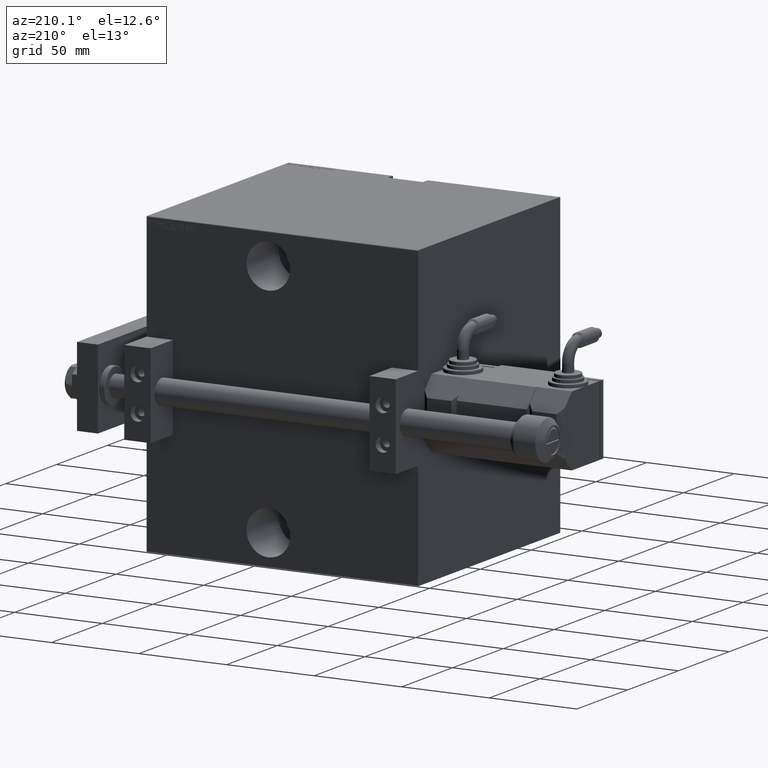
[diagram: clean part render]
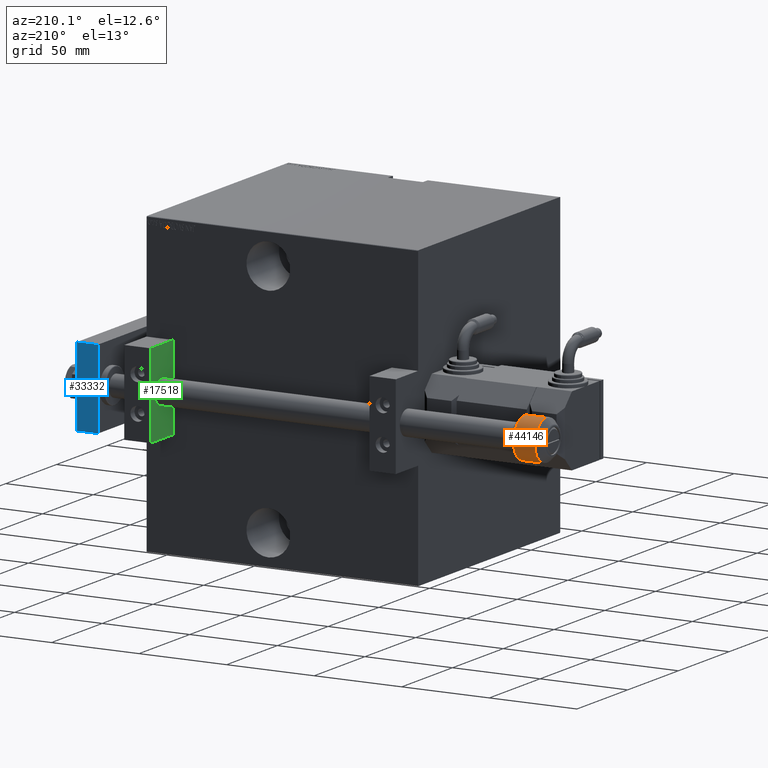
[diagram: same view with three faces highlighted in distinct colors, each labeled with its STEP entity id]
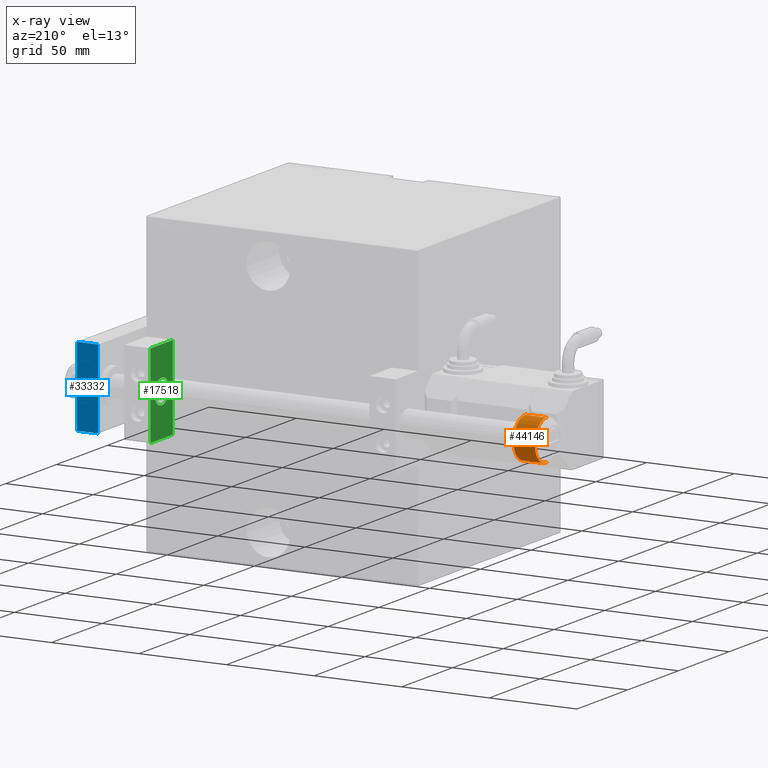
[diagram: x-ray of the same camera — body ghosted, the three highlighted faces saturated]
A machine part, auxiliary view with three faces highlighted in distinct colors.
The next image is the same camera in x-ray (body ghosted, the three faces saturated) — at least one of them is partly hidden behind the body in this view.
Their STEP definitions:

[orange] entity #44146 — the highlighted cylindrical surface (edge-blend (fillet) strip) has radius 11.5 mm, axis along (-1, 0, -0).
#1316 = CARTESIAN_POINT ( 'NONE',  ( 11.49999999999999822, 1.408343819019455979E-15, 3.914213562373095812 ) ) ;
#2425 = VERTEX_POINT ( 'NONE', #1316 ) ;
#2428 = CARTESIAN_POINT ( 'NONE',  ( 0.000000000000000000, 0.000000000000000000, 3.914213562373095812 ) ) ;
#3248 = ORIENTED_EDGE ( 'NONE', *, *, #10058, .T. ) ;
#3466 = EDGE_CURVE ( 'NONE', #38599, #48744, #20998, .T. ) ;
#3602 = EDGE_LOOP ( 'NONE', ( #48250, #3248, #44060, #37664 ) ) ;
#7611 = EDGE_CURVE ( 'NONE', #48744, #2425, #16870, .T. ) ;
#7613 = CARTESIAN_POINT ( 'NONE',  ( 0.000000000000000000, 0.000000000000000000, 20.00000000000000000 ) ) ;
#10058 = EDGE_CURVE ( 'NONE', #20093, #38599, #16904, .T. ) ;
#10070 = EDGE_CURVE ( 'NONE', #20093, #2425, #45765, .T. ) ;
#10168 = CARTESIAN_POINT ( 'NONE',  ( 11.49999999999999822, 1.408343819019455979E-15, 16.08578643762689708 ) ) ;
#14683 = DIRECTION ( 'NONE',  ( -0.000000000000000000, -0.000000000000000000, -1.000000000000000000 ) ) ;
#14782 = CARTESIAN_POINT ( 'NONE',  ( -11.49999999999999822, 0.000000000000000000, 3.914213562373095812 ) ) ;
#16870 = CIRCLE ( 'NONE', #45107, 11.49999999999999822 ) ;
#16904 = CIRCLE ( 'NONE', #48351, 11.49999999999999822 ) ;
#17211 = CARTESIAN_POINT ( 'NONE',  ( -11.49999999999999822, 0.000000000000000000, 20.00000000000000000 ) ) ;
#17245 = DIRECTION ( 'NONE',  ( 0.000000000000000000, 0.000000000000000000, -1.000000000000000000 ) ) ;
#17983 = DIRECTION ( 'NONE',  ( -0.000000000000000000, -0.000000000000000000, -1.000000000000000000 ) ) ;
#20093 = VERTEX_POINT ( 'NONE', #10168 ) ;
#20998 = LINE ( 'NONE', #17211, #28352 ) ;
#22142 = CYLINDRICAL_SURFACE ( 'NONE', #35601, 11.49999999999999822 ) ;
#23014 = DIRECTION ( 'NONE',  ( 1.000000000000000000, 0.000000000000000000, 0.000000000000000000 ) ) ;
#28352 = VECTOR ( 'NONE', #29334, 1000.000000000000000 ) ;
#28624 = CARTESIAN_POINT ( 'NONE',  ( 0.000000000000000000, 0.000000000000000000, 16.08578643762689708 ) ) ;
#29334 = DIRECTION ( 'NONE',  ( -0.000000000000000000, -0.000000000000000000, -1.000000000000000000 ) ) ;
#33256 = DIRECTION ( 'NONE',  ( -1.000000000000000000, 0.000000000000000000, 0.000000000000000000 ) ) ;
#35601 = AXIS2_PLACEMENT_3D ( 'NONE', #7613, #14683, #41732 ) ;
#37664 = ORIENTED_EDGE ( 'NONE', *, *, #7611, .T. ) ;
#38599 = VERTEX_POINT ( 'NONE', #41873 ) ;
#41214 = CARTESIAN_POINT ( 'NONE',  ( 11.49999999999999822, 1.408343819019455979E-15, 20.00000000000000000 ) ) ;
#41732 = DIRECTION ( 'NONE',  ( -1.000000000000000000, 0.000000000000000000, 0.000000000000000000 ) ) ;
#41873 = CARTESIAN_POINT ( 'NONE',  ( -11.49999999999999822, 0.000000000000000000, 16.08578643762689708 ) ) ;
#43050 = FACE_OUTER_BOUND ( 'NONE', #3602, .T. ) ;
#44060 = ORIENTED_EDGE ( 'NONE', *, *, #3466, .T. ) ;
#44146 = ADVANCED_FACE ( 'NONE', ( #43050 ), #22142, .T. ) ;
#45107 = AXIS2_PLACEMENT_3D ( 'NONE', #2428, #48180, #33256 ) ;
#45765 = LINE ( 'NONE', #41214, #46770 ) ;
#46770 = VECTOR ( 'NONE', #17983, 1000.000000000000000 ) ;
#48180 = DIRECTION ( 'NONE',  ( -0.000000000000000000, -0.000000000000000000, 1.000000000000000000 ) ) ;
#48250 = ORIENTED_EDGE ( 'NONE', *, *, #10070, .F. ) ;
#48351 = AXIS2_PLACEMENT_3D ( 'NONE', #28624, #17245, #23014 ) ;
#48744 = VERTEX_POINT ( 'NONE', #14782 ) ;

[blue] entity #33332 — the highlighted planar face has unit normal (0, -1, -0).
#898 = LINE ( 'NONE', #39533, #5646 ) ;
#2008 = DIRECTION ( 'NONE',  ( 0.000000000000000000, -0.000000000000000000, -1.000000000000000000 ) ) ;
#3698 = VERTEX_POINT ( 'NONE', #16412 ) ;
#5646 = VECTOR ( 'NONE', #43586, 1000.000000000000000 ) ;
#5793 = DIRECTION ( 'NONE',  ( 0.000000000000000000, -1.000000000000000000, 0.000000000000000000 ) ) ;
#7361 = VERTEX_POINT ( 'NONE', #25289 ) ;
#7625 = CARTESIAN_POINT ( 'NONE',  ( -22.50000000000000355, 115.0000000000000000, 12.00000000000000000 ) ) ;
#7649 = ORIENTED_EDGE ( 'NONE', *, *, #43146, .T. ) ;
#9301 = ORIENTED_EDGE ( 'NONE', *, *, #30894, .T. ) ;
#9420 = DIRECTION ( 'NONE',  ( -0.000000000000000000, -0.000000000000000000, -1.000000000000000000 ) ) ;
#12944 = CARTESIAN_POINT ( 'NONE',  ( 22.50000000000000000, 115.0000000000000000, 12.00000000000000000 ) ) ;
#16412 = CARTESIAN_POINT ( 'NONE',  ( -22.50000000000000355, 115.0000000000000000, 12.00000000000000000 ) ) ;
#16915 = FACE_OUTER_BOUND ( 'NONE', #20363, .T. ) ;
#19504 = DIRECTION ( 'NONE',  ( -0.000000000000000000, -0.000000000000000000, -1.000000000000000000 ) ) ;
#20363 = EDGE_LOOP ( 'NONE', ( #9301, #48096, #37113, #7649 ) ) ;
#24694 = AXIS2_PLACEMENT_3D ( 'NONE', #32327, #5793, #2008 ) ;
#24816 = VERTEX_POINT ( 'NONE', #35459 ) ;
#25066 = LINE ( 'NONE', #12944, #42007 ) ;
#25083 = LINE ( 'NONE', #44553, #26196 ) ;
#25289 = CARTESIAN_POINT ( 'NONE',  ( 22.50000000000000000, 115.0000000000000000, 0.000000000000000000 ) ) ;
#26196 = VECTOR ( 'NONE', #32915, 1000.000000000000000 ) ;
#30374 = VERTEX_POINT ( 'NONE', #48388 ) ;
#30875 = LINE ( 'NONE', #7625, #43235 ) ;
#30894 = EDGE_CURVE ( 'NONE', #7361, #30374, #25083, .T. ) ;
#32085 = EDGE_CURVE ( 'NONE', #3698, #30374, #30875, .T. ) ;
#32327 = CARTESIAN_POINT ( 'NONE',  ( 22.50000000000000000, 115.0000000000000000, 12.00000000000000000 ) ) ;
#32915 = DIRECTION ( 'NONE',  ( -1.000000000000000000, 0.000000000000000000, 0.000000000000000000 ) ) ;
#33332 = ADVANCED_FACE ( 'NONE', ( #16915 ), #36126, .F. ) ;
#35459 = CARTESIAN_POINT ( 'NONE',  ( 22.50000000000000000, 115.0000000000000000, 12.00000000000000000 ) ) ;
#36126 = PLANE ( 'NONE',  #24694 ) ;
#37113 = ORIENTED_EDGE ( 'NONE', *, *, #42014, .F. ) ;
#39533 = CARTESIAN_POINT ( 'NONE',  ( 22.50000000000000000, 115.0000000000000000, 12.00000000000000000 ) ) ;
#42007 = VECTOR ( 'NONE', #9420, 1000.000000000000000 ) ;
#42014 = EDGE_CURVE ( 'NONE', #24816, #3698, #898, .T. ) ;
#43146 = EDGE_CURVE ( 'NONE', #24816, #7361, #25066, .T. ) ;
#43235 = VECTOR ( 'NONE', #19504, 1000.000000000000000 ) ;
#43586 = DIRECTION ( 'NONE',  ( -1.000000000000000000, 0.000000000000000000, 0.000000000000000000 ) ) ;
#44553 = CARTESIAN_POINT ( 'NONE',  ( 22.50000000000000000, 115.0000000000000000, 0.000000000000000000 ) ) ;
#48096 = ORIENTED_EDGE ( 'NONE', *, *, #32085, .F. ) ;
#48388 = CARTESIAN_POINT ( 'NONE',  ( -22.50000000000000355, 115.0000000000000000, 0.000000000000000000 ) ) ;

[green] entity #17518 — the highlighted planar face has unit normal (-1, 0, 0).
#521 = LINE ( 'NONE', #8346, #7332 ) ;
#1580 = CIRCLE ( 'NONE', #27357, 7.000000000000000000 ) ;
#3012 = CARTESIAN_POINT ( 'NONE',  ( 0.000000000000000000, -11.00000000000000000, 24.00000000000000355 ) ) ;
#4436 = CARTESIAN_POINT ( 'NONE',  ( 0.000000000000000000, 3.469446951953614189E-15, 0.000000000000000000 ) ) ;
#5572 = DIRECTION ( 'NONE',  ( -1.000000000000000000, 0.000000000000000000, -0.000000000000000000 ) ) ;
#6598 = LINE ( 'NONE', #22003, #27363 ) ;
#7332 = VECTOR ( 'NONE', #15411, 1000.000000000000000 ) ;
#8346 = CARTESIAN_POINT ( 'NONE',  ( 0.000000000000000000, 11.00000000000000355, -23.99999999999999289 ) ) ;
#8642 = EDGE_CURVE ( 'NONE', #46444, #33962, #1580, .T. ) ;
#9213 = EDGE_CURVE ( 'NONE', #42354, #44460, #6598, .T. ) ;
#10046 = ORIENTED_EDGE ( 'NONE', *, *, #25467, .F. ) ;
#10764 = CARTESIAN_POINT ( 'NONE',  ( 0.000000000000000000, 11.00000000000000355, 24.00000000000000711 ) ) ;
#11797 = EDGE_LOOP ( 'NONE', ( #10046, #14143 ) ) ;
#13710 = VECTOR ( 'NONE', #44891, 1000.000000000000000 ) ;
#14039 = AXIS2_PLACEMENT_3D ( 'NONE', #47723, #20442, #28523 ) ;
#14143 = ORIENTED_EDGE ( 'NONE', *, *, #8642, .F. ) ;
#14190 = VERTEX_POINT ( 'NONE', #44446 ) ;
#15411 = DIRECTION ( 'NONE',  ( 0.000000000000000000, -1.000000000000000000, -3.154042683594194627E-16 ) ) ;
#17518 = ADVANCED_FACE ( 'NONE', ( #28577, #43000 ), #35913, .T. ) ;
#17611 = CARTESIAN_POINT ( 'NONE',  ( 0.000000000000000000, -11.00000000000000000, 24.00000000000000355 ) ) ;
#17974 = DIRECTION ( 'NONE',  ( 0.000000000000000000, -1.000000000000000000, -1.577021341797097314E-16 ) ) ;
#18487 = EDGE_CURVE ( 'NONE', #14190, #48398, #521, .T. ) ;
#20442 = DIRECTION ( 'NONE',  ( -1.000000000000000000, 0.000000000000000000, -0.000000000000000000 ) ) ;
#22003 = CARTESIAN_POINT ( 'NONE',  ( 0.000000000000000000, 11.00000000000000355, 24.00000000000000711 ) ) ;
#23555 = EDGE_CURVE ( 'NONE', #44460, #48398, #45142, .T. ) ;
#23632 = DIRECTION ( 'NONE',  ( 0.000000000000000000, 0.000000000000000000, 1.000000000000000000 ) ) ;
#24518 = CIRCLE ( 'NONE', #14039, 7.000000000000000000 ) ;
#25374 = CARTESIAN_POINT ( 'NONE',  ( 0.000000000000000000, 3.469446951953614189E-15, 7.000000000000000000 ) ) ;
#25467 = EDGE_CURVE ( 'NONE', #33962, #46444, #24518, .T. ) ;
#25943 = ORIENTED_EDGE ( 'NONE', *, *, #9213, .F. ) ;
#27357 = AXIS2_PLACEMENT_3D ( 'NONE', #4436, #31721, #23632 ) ;
#27363 = VECTOR ( 'NONE', #17974, 1000.000000000000000 ) ;
#28523 = DIRECTION ( 'NONE',  ( 0.000000000000000000, 0.000000000000000000, 1.000000000000000000 ) ) ;
#28577 = FACE_BOUND ( 'NONE', #11797, .T. ) ;
#29477 = LINE ( 'NONE', #10764, #13710 ) ;
#31721 = DIRECTION ( 'NONE',  ( -1.000000000000000000, 0.000000000000000000, -0.000000000000000000 ) ) ;
#33523 = DIRECTION ( 'NONE',  ( 0.000000000000000000, 0.000000000000000000, -1.000000000000000000 ) ) ;
#33962 = VERTEX_POINT ( 'NONE', #25374 ) ;
#35913 = PLANE ( 'NONE',  #41194 ) ;
#36086 = ORIENTED_EDGE ( 'NONE', *, *, #18487, .T. ) ;
#37377 = VECTOR ( 'NONE', #33523, 1000.000000000000000 ) ;
#38371 = ORIENTED_EDGE ( 'NONE', *, *, #23555, .F. ) ;
#39434 = CARTESIAN_POINT ( 'NONE',  ( 0.000000000000000000, 0.000000000000000000, 0.000000000000000000 ) ) ;
#41194 = AXIS2_PLACEMENT_3D ( 'NONE', #39434, #5572, #43997 ) ;
#41436 = EDGE_LOOP ( 'NONE', ( #38371, #25943, #49734, #36086 ) ) ;
#41867 = EDGE_CURVE ( 'NONE', #42354, #14190, #29477, .T. ) ;
#42354 = VERTEX_POINT ( 'NONE', #44272 ) ;
#43000 = FACE_OUTER_BOUND ( 'NONE', #41436, .T. ) ;
#43997 = DIRECTION ( 'NONE',  ( -0.000000000000000000, 0.000000000000000000, 1.000000000000000000 ) ) ;
#44272 = CARTESIAN_POINT ( 'NONE',  ( 0.000000000000000000, 11.00000000000000355, 24.00000000000000711 ) ) ;
#44446 = CARTESIAN_POINT ( 'NONE',  ( 0.000000000000000000, 11.00000000000000355, -23.99999999999999289 ) ) ;
#44460 = VERTEX_POINT ( 'NONE', #3012 ) ;
#44891 = DIRECTION ( 'NONE',  ( 0.000000000000000000, 0.000000000000000000, -1.000000000000000000 ) ) ;
#45142 = LINE ( 'NONE', #17611, #37377 ) ;
#45906 = CARTESIAN_POINT ( 'NONE',  ( 0.000000000000000000, 4.326699711356761015E-15, -7.000000000000000000 ) ) ;
#46444 = VERTEX_POINT ( 'NONE', #45906 ) ;
#47723 = CARTESIAN_POINT ( 'NONE',  ( 0.000000000000000000, 3.469446951953614189E-15, 0.000000000000000000 ) ) ;
#47989 = CARTESIAN_POINT ( 'NONE',  ( 0.000000000000000000, -11.00000000000000000, -24.00000000000000000 ) ) ;
#48398 = VERTEX_POINT ( 'NONE', #47989 ) ;
#49734 = ORIENTED_EDGE ( 'NONE', *, *, #41867, .T. ) ;